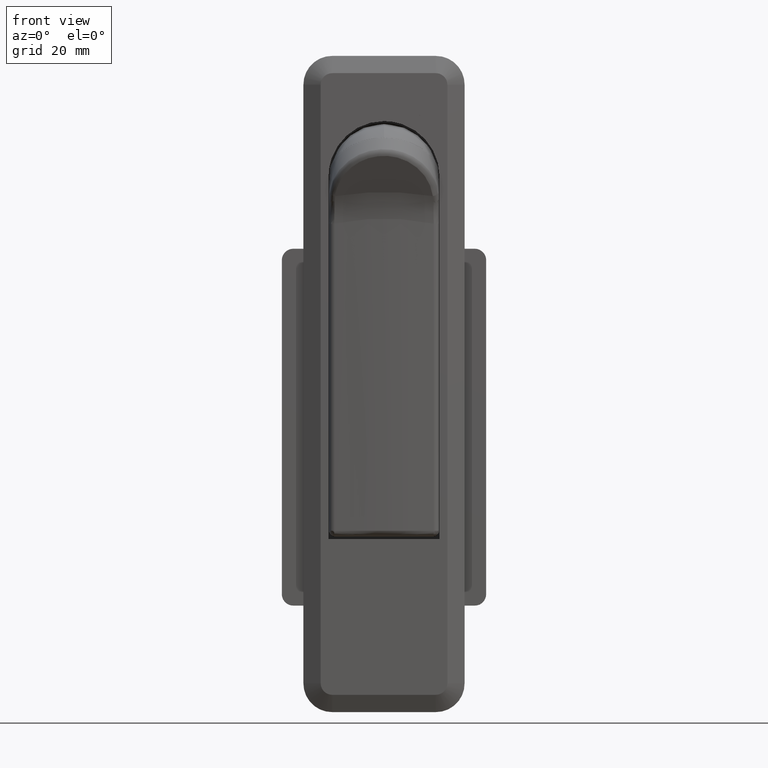
[diagram: clean part render]
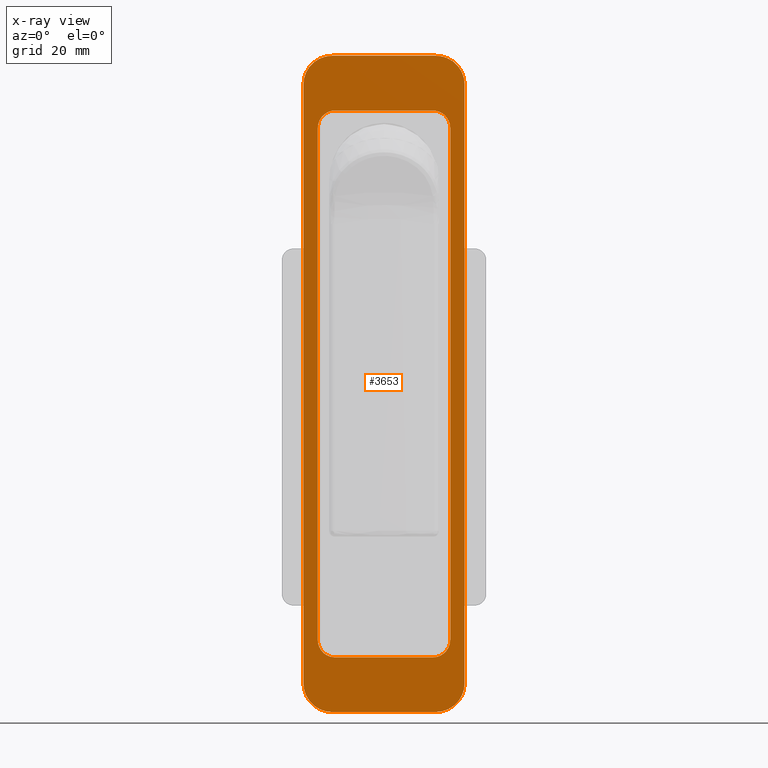
[diagram: x-ray — body ghosted, one internal face saturated and labeled with its STEP entity id]
A machine part, front view, then the same camera in x-ray: the body is ghosted and one INTERNAL B-rep face — a face not visible from any outside direction — is saturated and labeled: STEP entity #3653.
In plain terms, the highlighted face is a freeform B-spline surface patch.
Its self-contained STEP definition (entity closure, byte-faithful):
#3471=CARTESIAN_POINT('',(-15.398599945730570,0.0,26.694299779045870));
#3472=CARTESIAN_POINT('',(15.398600696749090,0.0,26.694299779045870));
#3473=CARTESIAN_POINT('',(-15.398599945730570,0.0,-98.694302836764123));
#3474=CARTESIAN_POINT('',(15.398600696749090,0.0,-98.694302836764123));
#3475=B_SPLINE_SURFACE_WITH_KNOTS('',1,1,((#3471,#3473),(#3472,#3474)),.UNSPECIFIED.,.F.,.F.,.U.,(2,2),(2,2),(0.0,30.797200642479659),(0.0,125.388602615810000),.UNSPECIFIED.);
#3476=CARTESIAN_POINT('',(-9.0,0.0,21.0));
#3477=VERTEX_POINT('',#3476);
#3478=CARTESIAN_POINT('',(-14.0,0.0,16.0));
#3479=VERTEX_POINT('',#3478);
#3480=CARTESIAN_POINT('',(-9.0,0.0,21.0));
#3481=CARTESIAN_POINT('',(-9.490897268571535,0.0,21.000226756748461));
#3482=CARTESIAN_POINT('',(-10.329347959071381,0.0,20.875470061491079));
#3483=CARTESIAN_POINT('',(-11.314765060368790,0.0,20.460139800019110));
#3484=CARTESIAN_POINT('',(-12.039313741285120,0.0,19.995033487180169));
#3485=CARTESIAN_POINT('',(-12.685245614808430,0.0,19.423939349876498));
#3486=CARTESIAN_POINT('',(-13.275178983022069,0.0,18.658345273195820));
#3487=CARTESIAN_POINT('',(-13.834272602880709,0.0,17.513257012743349));
#3488=CARTESIAN_POINT('',(-14.000407043207190,0.0,16.593204149001181));
#3489=CARTESIAN_POINT('',(-14.0,0.0,16.0));
#3490=B_SPLINE_CURVE_WITH_KNOTS('',3,(#3480,#3481,#3482,#3483,#3484,#3485,#3486,#3487,#3488,#3489),.UNSPECIFIED.,.F.,.U.,(4,1,1,1,1,1,1,4),(0.000000154503509,1.472628258785560,2.515747563911233,3.190729476466799,4.049702791602843,5.092828146351382,6.074605503504850,7.854030914387812),.UNSPECIFIED.);
#3491=EDGE_CURVE('',#3477,#3479,#3490,.T.);
#3492=ORIENTED_EDGE('',*,*,#3491,.T.);
#3493=CARTESIAN_POINT('',(-14.0,0.0,-88.0));
#3494=VERTEX_POINT('',#3493);
#3495=CARTESIAN_POINT('',(-14.0,0.0,16.0));
#3496=CARTESIAN_POINT('',(-14.0,0.0,-88.0));
#3497=QUASI_UNIFORM_CURVE('',1,(#3495,#3496),.UNSPECIFIED.,.F.,.U.);
#3498=EDGE_CURVE('',#3479,#3494,#3497,.T.);
#3499=ORIENTED_EDGE('',*,*,#3498,.T.);
#3500=CARTESIAN_POINT('',(-9.0,0.0,-93.0));
#3501=VERTEX_POINT('',#3500);
#3502=CARTESIAN_POINT('',(-14.0,0.0,-88.0));
#3503=CARTESIAN_POINT('',(-14.000110398654559,0.0,-88.429519055801279));
#3504=CARTESIAN_POINT('',(-13.904536099850260,0.0,-89.165775983635569));
#3505=CARTESIAN_POINT('',(-13.580703973993350,0.0,-90.053375934189475));
#3506=CARTESIAN_POINT('',(-13.106554756669709,0.0,-90.915188127846790));
#3507=CARTESIAN_POINT('',(-12.463533230545210,0.0,-91.669921080950104));
#3508=CARTESIAN_POINT('',(-11.651339990883789,0.0,-92.264361773223754));
#3509=CARTESIAN_POINT('',(-10.848190212023789,0.0,-92.674902228302471));
#3510=CARTESIAN_POINT('',(-9.981753661923250,0.0,-92.937728567027577));
#3511=CARTESIAN_POINT('',(-9.306794782666394,0.0,-93.000018933410232));
#3512=CARTESIAN_POINT('',(-9.0,0.0,-93.0));
#3513=B_SPLINE_CURVE_WITH_KNOTS('',3,(#3502,#3503,#3504,#3505,#3506,#3507,#3508,#3509,#3510,#3511,#3512),.UNSPECIFIED.,.F.,.U.,(4,1,1,1,1,1,1,1,4),(0.000000154483354,1.288540444070500,2.208948821414695,2.822546415134271,4.233808654305642,5.154203922001468,5.829162129487819,6.933637036914484,7.854030914387970),.UNSPECIFIED.);
#3514=EDGE_CURVE('',#3494,#3501,#3513,.T.);
#3515=ORIENTED_EDGE('',*,*,#3514,.T.);
#3516=CARTESIAN_POINT('',(9.0,0.0,-93.0));
#3517=VERTEX_POINT('',#3516);
#3518=CARTESIAN_POINT('',(-9.0,0.0,-93.0));
#3519=CARTESIAN_POINT('',(9.0,0.0,-93.0));
#3520=QUASI_UNIFORM_CURVE('',1,(#3518,#3519),.UNSPECIFIED.,.F.,.U.);
#3521=EDGE_CURVE('',#3501,#3517,#3520,.T.);
#3522=ORIENTED_EDGE('',*,*,#3521,.T.);
#3523=CARTESIAN_POINT('',(14.0,0.0,-88.0));
#3524=VERTEX_POINT('',#3523);
#3525=CARTESIAN_POINT('',(9.0,0.0,-93.0));
#3526=CARTESIAN_POINT('',(9.613660465902603,0.0,-93.000502179798616));
#3527=CARTESIAN_POINT('',(10.656388929040499,0.0,-92.805504546257410));
#3528=CARTESIAN_POINT('',(11.852793001187360,0.0,-92.156369459503551));
#3529=CARTESIAN_POINT('',(12.610782592219770,0.0,-91.494238069936955));
#3530=CARTESIAN_POINT('',(13.179235933716360,0.0,-90.792879876912281));
#3531=CARTESIAN_POINT('',(13.645056727041251,0.0,-89.946666902922829));
#3532=CARTESIAN_POINT('',(13.937722578523440,0.0,-88.981746984262955));
#3533=CARTESIAN_POINT('',(14.000019590036390,0.0,-88.306795713180918));
#3534=CARTESIAN_POINT('',(14.0,0.0,-88.0));
#3535=B_SPLINE_CURVE_WITH_KNOTS('',3,(#3525,#3526,#3527,#3528,#3529,#3530,#3531,#3532,#3533,#3534),.UNSPECIFIED.,.F.,.U.,(4,1,1,1,1,1,1,4),(0.000000154504581,1.840786749953134,3.129346889661099,4.049702791606025,4.847409450787801,5.829162129493549,6.933637036916949,7.854030914387819),.UNSPECIFIED.);
#3536=EDGE_CURVE('',#3517,#3524,#3535,.T.);
#3537=ORIENTED_EDGE('',*,*,#3536,.T.);
#3538=CARTESIAN_POINT('',(14.0,0.0,16.0));
#3539=VERTEX_POINT('',#3538);
#3540=CARTESIAN_POINT('',(14.0,0.0,-88.0));
#3541=CARTESIAN_POINT('',(14.0,0.0,16.0));
#3542=QUASI_UNIFORM_CURVE('',1,(#3540,#3541),.UNSPECIFIED.,.F.,.U.);
#3543=EDGE_CURVE('',#3524,#3539,#3542,.T.);
#3544=ORIENTED_EDGE('',*,*,#3543,.T.);
#3545=CARTESIAN_POINT('',(9.0,0.0,21.0));
#3546=VERTEX_POINT('',#3545);
#3547=CARTESIAN_POINT('',(14.0,0.0,16.0));
#3548=CARTESIAN_POINT('',(14.000573385899250,0.0,16.613682021317729));
#3549=CARTESIAN_POINT('',(13.805411582840760,0.0,17.656342744028159));
#3550=CARTESIAN_POINT('',(13.077779583294200,0.0,18.997897702597879));
#3551=CARTESIAN_POINT('',(12.246298434137300,0.0,19.860527896121070));
#3552=CARTESIAN_POINT('',(11.334185445287430,0.0,20.453733326038829));
#3553=CARTESIAN_POINT('',(10.308886967124170,0.0,20.878518448904970));
#3554=CARTESIAN_POINT('',(9.490895781996727,0.0,21.000204608498699));
#3555=CARTESIAN_POINT('',(9.0,0.0,21.0));
#3556=B_SPLINE_CURVE_WITH_KNOTS('',3,(#3547,#3548,#3549,#3550,#3551,#3552,#3553,#3554,#3555),.UNSPECIFIED.,.F.,.U.,(4,1,1,1,1,1,4),(0.000000154497630,1.840786749948254,3.129346889656306,4.540607728683400,5.399635017550686,6.381411470183074,7.854030914387830),.UNSPECIFIED.);
#3557=EDGE_CURVE('',#3539,#3546,#3556,.T.);
#3558=ORIENTED_EDGE('',*,*,#3557,.T.);
#3559=CARTESIAN_POINT('',(9.0,0.0,21.0));
#3560=CARTESIAN_POINT('',(-9.0,0.0,21.0));
#3561=QUASI_UNIFORM_CURVE('',1,(#3559,#3560),.UNSPECIFIED.,.F.,.U.);
#3562=EDGE_CURVE('',#3546,#3477,#3561,.T.);
#3563=ORIENTED_EDGE('',*,*,#3562,.T.);
#3564=EDGE_LOOP('',(#3492,#3499,#3515,#3522,#3537,#3544,#3558,#3563));
#3565=FACE_OUTER_BOUND('',#3564,.T.);
#3566=CARTESIAN_POINT('',(-11.500000000000000,0.0,8.500000000000000));
#3567=VERTEX_POINT('',#3566);
#3568=CARTESIAN_POINT('',(-8.500000000000000,0.0,11.500000000000000));
#3569=VERTEX_POINT('',#3568);
#3570=CARTESIAN_POINT('',(-11.500000000000000,0.0,8.500000000000000));
#3571=CARTESIAN_POINT('',(-11.500081975055330,0.0,8.769983527691968));
#3572=CARTESIAN_POINT('',(-11.423309667392409,0.0,9.334474599990195));
#3573=CARTESIAN_POINT('',(-11.111711580376079,0.0,10.037633473266130));
#3574=CARTESIAN_POINT('',(-10.686709704233801,0.0,10.581908376645330));
#3575=CARTESIAN_POINT('',(-10.126630423316110,0.0,11.065446754671051));
#3576=CARTESIAN_POINT('',(-9.383610340084243,0.0,11.416728430658710));
#3577=CARTESIAN_POINT('',(-8.769972862540680,0.0,11.500061644512661));
#3578=CARTESIAN_POINT('',(-8.500000000000000,0.0,11.500000000000000));
#3579=B_SPLINE_CURVE_WITH_KNOTS('',3,(#3570,#3571,#3572,#3573,#3574,#3575,#3576,#3577,#3578),.UNSPECIFIED.,.F.,.U.,(4,1,1,1,1,1,4),(0.000000121411006,0.809961936875551,1.693574339508056,2.282634053387573,2.871654307392832,3.902546680716655,4.712507233007186),.UNSPECIFIED.);
#3580=EDGE_CURVE('',#3567,#3569,#3579,.T.);
#3581=ORIENTED_EDGE('',*,*,#3580,.T.);
#3582=CARTESIAN_POINT('',(8.500000000000000,0.0,11.500000000000000));
#3583=VERTEX_POINT('',#3582);
#3584=CARTESIAN_POINT('',(-8.500000000000000,0.0,11.500000000000000));
#3585=CARTESIAN_POINT('',(8.500000000000000,0.0,11.500000000000000));
#3586=QUASI_UNIFORM_CURVE('',1,(#3584,#3585),.UNSPECIFIED.,.F.,.U.);
#3587=EDGE_CURVE('',#3569,#3583,#3586,.T.);
#3588=ORIENTED_EDGE('',*,*,#3587,.T.);
#3589=CARTESIAN_POINT('',(11.500000000000000,0.0,8.500000000000000));
#3590=VERTEX_POINT('',#3589);
#3591=CARTESIAN_POINT('',(8.500000000000000,0.0,11.500000000000000));
#3592=CARTESIAN_POINT('',(8.769983527691968,0.0,11.500081975055330));
#3593=CARTESIAN_POINT('',(9.334474599990195,0.0,11.423309667392409));
#3594=CARTESIAN_POINT('',(10.037633473266130,0.0,11.111711580376079));
#3595=CARTESIAN_POINT('',(10.581908376645330,0.0,10.686709704233801));
#3596=CARTESIAN_POINT('',(11.065446754671051,0.0,10.126630423316110));
#3597=CARTESIAN_POINT('',(11.416728430658710,0.0,9.383610340084243));
#3598=CARTESIAN_POINT('',(11.500061644512661,0.0,8.769972862540680));
#3599=CARTESIAN_POINT('',(11.500000000000000,0.0,8.500000000000000));
#3600=B_SPLINE_CURVE_WITH_KNOTS('',3,(#3591,#3592,#3593,#3594,#3595,#3596,#3597,#3598,#3599),.UNSPECIFIED.,.F.,.U.,(4,1,1,1,1,1,4),(0.000000121411006,0.809961936875551,1.693574339508056,2.282634053387573,2.871654307392832,3.902546680716655,4.712507233007186),.UNSPECIFIED.);
#3601=EDGE_CURVE('',#3583,#3590,#3600,.T.);
#3602=ORIENTED_EDGE('',*,*,#3601,.T.);
#3603=CARTESIAN_POINT('',(11.500000000000000,0.0,-80.500000000000000));
#3604=VERTEX_POINT('',#3603);
#3605=CARTESIAN_POINT('',(11.500000000000000,0.0,8.500000000000000));
#3606=CARTESIAN_POINT('',(11.500000000000000,0.0,-80.500000000000000));
#3607=QUASI_UNIFORM_CURVE('',1,(#3605,#3606),.UNSPECIFIED.,.F.,.U.);
#3608=EDGE_CURVE('',#3590,#3604,#3607,.T.);
#3609=ORIENTED_EDGE('',*,*,#3608,.T.);
#3610=CARTESIAN_POINT('',(8.500000000000000,0.0,-83.500000000000000));
#3611=VERTEX_POINT('',#3610);
#3612=CARTESIAN_POINT('',(11.500000000000000,0.0,-80.500000000000000));
#3613=CARTESIAN_POINT('',(11.500081990733010,0.0,-80.769985132302381));
#3614=CARTESIAN_POINT('',(11.423304966302810,0.0,-81.334459005960966));
#3615=CARTESIAN_POINT('',(11.071545148019849,0.0,-82.128408588516606));
#3616=CARTESIAN_POINT('',(10.552877876504439,0.0,-82.729536064858820));
#3617=CARTESIAN_POINT('',(10.028540106303121,0.0,-83.098641567088436));
#3618=CARTESIAN_POINT('',(9.383392420788159,0.0,-83.403923751157194));
#3619=CARTESIAN_POINT('',(8.868211629478081,0.0,-83.500322599601787));
#3620=CARTESIAN_POINT('',(8.500000000000000,0.0,-83.500000000000000));
#3621=B_SPLINE_CURVE_WITH_KNOTS('',3,(#3612,#3613,#3614,#3615,#3616,#3617,#3618,#3619,#3620),.UNSPECIFIED.,.F.,.U.,(4,1,1,1,1,1,4),(0.000000121411485,0.809961936875268,1.693574339507798,2.577121248042592,3.166214227941419,3.608017004788658,4.712507233007190),.UNSPECIFIED.);
#3622=EDGE_CURVE('',#3604,#3611,#3621,.T.);
#3623=ORIENTED_EDGE('',*,*,#3622,.T.);
#3624=CARTESIAN_POINT('',(-8.500000000000000,0.0,-83.500000000000000));
#3625=VERTEX_POINT('',#3624);
#3626=CARTESIAN_POINT('',(8.500000000000000,0.0,-83.500000000000000));
#3627=CARTESIAN_POINT('',(-8.500000000000000,0.0,-83.500000000000000));
#3628=QUASI_UNIFORM_CURVE('',1,(#3626,#3627),.UNSPECIFIED.,.F.,.U.);
#3629=EDGE_CURVE('',#3611,#3625,#3628,.T.);
#3630=ORIENTED_EDGE('',*,*,#3629,.T.);
#3631=CARTESIAN_POINT('',(-11.500000000000000,0.0,-80.500000000000000));
#3632=VERTEX_POINT('',#3631);
#3633=CARTESIAN_POINT('',(-8.500000000000000,0.0,-83.500000000000000));
#3634=CARTESIAN_POINT('',(-8.769988936687335,0.0,-83.500093377859514));
#3635=CARTESIAN_POINT('',(-9.236272146171061,0.0,-83.436601278412397));
#3636=CARTESIAN_POINT('',(-9.857542586090867,0.0,-83.196948849425894));
#3637=CARTESIAN_POINT('',(-10.357579436861659,0.0,-82.880269668218119));
#3638=CARTESIAN_POINT('',(-10.857821769318230,0.0,-82.404198427480438));
#3639=CARTESIAN_POINT('',(-11.242711481229680,0.0,-81.796313763111471));
#3640=CARTESIAN_POINT('',(-11.458911373121101,0.0,-81.113579616579145));
#3641=CARTESIAN_POINT('',(-11.500018645914389,0.0,-80.696342223469259));
#3642=CARTESIAN_POINT('',(-11.500000000000000,0.0,-80.500000000000000));
#3643=B_SPLINE_CURVE_WITH_KNOTS('',3,(#3633,#3634,#3635,#3636,#3637,#3638,#3639,#3640,#3641,#3642),.UNSPECIFIED.,.F.,.U.,(4,1,1,1,1,1,1,4),(0.000000121405801,0.809961936871298,1.399032219746931,1.988124891781578,2.577121248040892,3.460743903867797,4.123467545041679,4.712507233007202),.UNSPECIFIED.);
#3644=EDGE_CURVE('',#3625,#3632,#3643,.T.);
#3645=ORIENTED_EDGE('',*,*,#3644,.T.);
#3646=CARTESIAN_POINT('',(-11.500000000000000,0.0,-80.500000000000000));
#3647=CARTESIAN_POINT('',(-11.500000000000000,0.0,8.500000000000000));
#3648=QUASI_UNIFORM_CURVE('',1,(#3646,#3647),.UNSPECIFIED.,.F.,.U.);
#3649=EDGE_CURVE('',#3632,#3567,#3648,.T.);
#3650=ORIENTED_EDGE('',*,*,#3649,.T.);
#3651=EDGE_LOOP('',(#3581,#3588,#3602,#3609,#3623,#3630,#3645,#3650));
#3652=FACE_BOUND('',#3651,.T.);
#3653=ADVANCED_FACE('',(#3565,#3652),#3475,.F.);